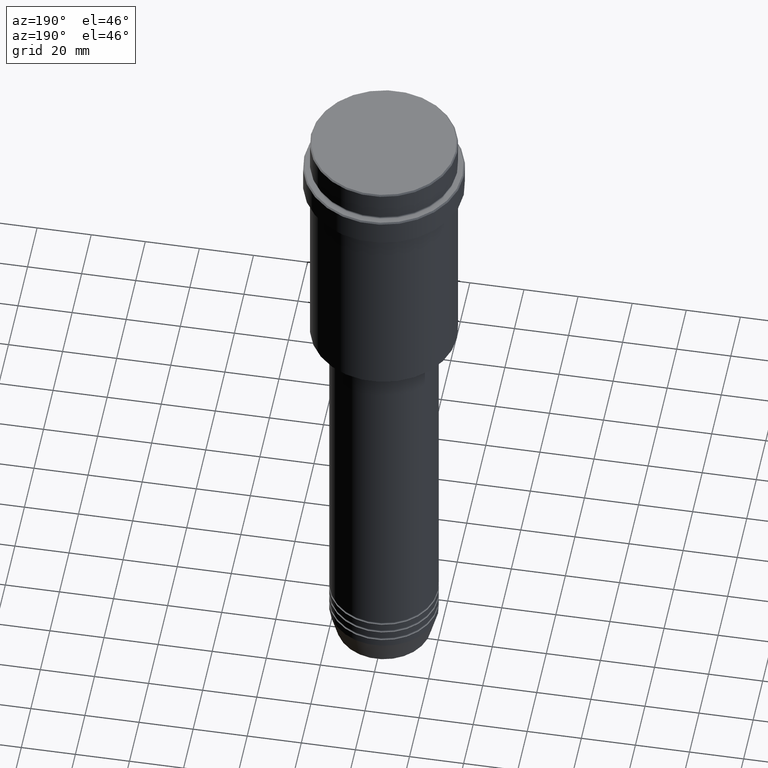
[diagram: clean part render]
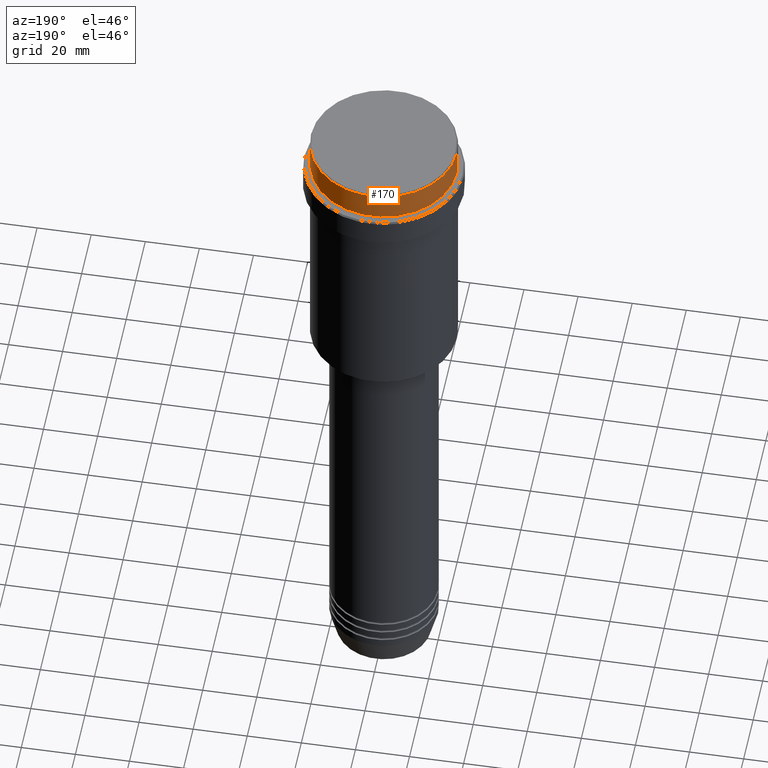
[diagram: same view with one face highlighted and labeled with its STEP entity id]
A machine part, auxiliary view. The second image highlights one B-rep face of the part: STEP entity #170.
In plain terms, the highlighted cylindrical surface (partial cylindrical patch) has radius 27 mm, axis along (-0, -0, 1).
Its self-contained STEP definition (entity closure, byte-faithful):
#15 = CYLINDRICAL_SURFACE ( 'NONE', #601, 27.00000000000000355 ) ;
#28 = EDGE_CURVE ( 'NONE', #800, #464, #717, .T. ) ;
#44 = CARTESIAN_POINT ( 'NONE',  ( -27.00000000000000355, 3.306546357697854128E-15, 0.000000000000000000 ) ) ;
#116 = FACE_OUTER_BOUND ( 'NONE', #1156, .T. ) ;
#126 = EDGE_CURVE ( 'NONE', #687, #272, #1068, .T. ) ;
#152 = CARTESIAN_POINT ( 'NONE',  ( -27.00000000000000355, 3.306546357697854128E-15, -11.00000000000000178 ) ) ;
#170 = ADVANCED_FACE ( 'NONE', ( #116 ), #15, .T. ) ;
#177 = EDGE_CURVE ( 'NONE', #687, #464, #1187, .T. ) ;
#214 = DIRECTION ( 'NONE',  ( 1.000000000000000000, 0.000000000000000000, 0.000000000000000000 ) ) ;
#272 = VERTEX_POINT ( 'NONE', #152 ) ;
#313 = DIRECTION ( 'NONE',  ( 0.000000000000000000, 0.000000000000000000, -1.000000000000000000 ) ) ;
#344 = DIRECTION ( 'NONE',  ( 1.000000000000000000, 0.000000000000000000, 0.000000000000000000 ) ) ;
#377 = DIRECTION ( 'NONE',  ( -0.000000000000000000, -0.000000000000000000, 1.000000000000000000 ) ) ;
#410 = ORIENTED_EDGE ( 'NONE', *, *, #126, .T. ) ;
#413 = ORIENTED_EDGE ( 'NONE', *, *, #28, .T. ) ;
#464 = VERTEX_POINT ( 'NONE', #1305 ) ;
#479 = DIRECTION ( 'NONE',  ( -0.000000000000000000, -0.000000000000000000, 1.000000000000000000 ) ) ;
#521 = CARTESIAN_POINT ( 'NONE',  ( -27.00000000000000355, 3.306546357697854128E-15, -0.5000000000000350830 ) ) ;
#545 = CARTESIAN_POINT ( 'NONE',  ( 0.000000000000000000, 0.000000000000000000, 0.000000000000000000 ) ) ;
#581 = ORIENTED_EDGE ( 'NONE', *, *, #177, .F. ) ;
#601 = AXIS2_PLACEMENT_3D ( 'NONE', #545, #1082, #1296 ) ;
#644 = AXIS2_PLACEMENT_3D ( 'NONE', #769, #313, #344 ) ;
#645 = ORIENTED_EDGE ( 'NONE', *, *, #718, .T. ) ;
#687 = VERTEX_POINT ( 'NONE', #815 ) ;
#699 = CARTESIAN_POINT ( 'NONE',  ( 0.000000000000000000, 0.000000000000000000, -11.00000000000000178 ) ) ;
#717 = CIRCLE ( 'NONE', #644, 27.00000000000000355 ) ;
#718 = EDGE_CURVE ( 'NONE', #272, #800, #1367, .T. ) ;
#759 = DIRECTION ( 'NONE',  ( -0.000000000000000000, -0.000000000000000000, 1.000000000000000000 ) ) ;
#769 = CARTESIAN_POINT ( 'NONE',  ( 0.000000000000000000, 0.000000000000000000, -0.5000000000000350830 ) ) ;
#800 = VERTEX_POINT ( 'NONE', #521 ) ;
#815 = CARTESIAN_POINT ( 'NONE',  ( 27.00000000000000355, 0.000000000000000000, -11.00000000000000178 ) ) ;
#859 = VECTOR ( 'NONE', #759, 1000.000000000000000 ) ;
#884 = CARTESIAN_POINT ( 'NONE',  ( 27.00000000000000355, 0.000000000000000000, 0.000000000000000000 ) ) ;
#1068 = CIRCLE ( 'NONE', #1339, 27.00000000000000355 ) ;
#1082 = DIRECTION ( 'NONE',  ( -0.000000000000000000, -0.000000000000000000, 1.000000000000000000 ) ) ;
#1156 = EDGE_LOOP ( 'NONE', ( #410, #645, #413, #581 ) ) ;
#1187 = LINE ( 'NONE', #884, #859 ) ;
#1296 = DIRECTION ( 'NONE',  ( 1.000000000000000000, 0.000000000000000000, 0.000000000000000000 ) ) ;
#1305 = CARTESIAN_POINT ( 'NONE',  ( 27.00000000000000355, 0.000000000000000000, -0.5000000000000350830 ) ) ;
#1319 = VECTOR ( 'NONE', #377, 1000.000000000000000 ) ;
#1339 = AXIS2_PLACEMENT_3D ( 'NONE', #699, #479, #214 ) ;
#1367 = LINE ( 'NONE', #44, #1319 ) ;